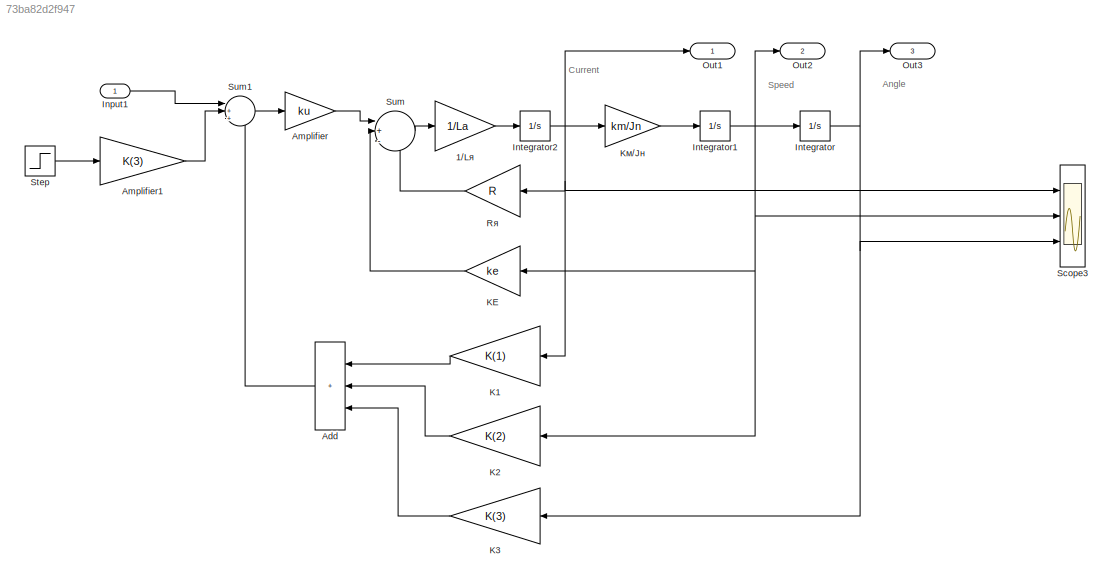
MODEL slx_73ba82d2f947
KIND model
CONFIG AbsTol = auto
CONFIG EnableMultiTasking = on
CONFIG FixedStep = auto
CONFIG MaxStep = auto
CONFIG MinStep = auto
CONFIG RelTol = 1e-3
CONFIG SampleTimeConstraint = Unconstrained
CONFIG SolverName = VariableStepAuto
CONFIG StartTime = 0.0
CONFIG StopTime = 0.1
BLOCK [Gain] 1//Lя
  Gain = 1/La
BLOCK [Sum] Add
  IconShape = rectangular
  Inputs = +++
  Ports = [3, 1]
BLOCK [Gain] Amplifier
  Gain = ku
BLOCK [Gain] Amplifier1
  Gain = K(3)
BLOCK [Inport] Input1
BLOCK [Integrator] Integrator
  Ports = [1, 1]
BLOCK [Integrator] Integrator1
  Ports = [1, 1]
BLOCK [Integrator] Integrator2
  Ports = [1, 1]
BLOCK [Gain] K1
  Gain = K(1)
BLOCK [Gain] K2
  Gain = K(2)
BLOCK [Gain] K3
  Gain = K(3)
BLOCK [Gain] KE
  Gain = ke
BLOCK [Gain] Kм//Jн
  Gain = km/Jn
BLOCK [Outport] Out1
  BusOutputAsStruct = on
BLOCK [Outport] Out2
  BusOutputAsStruct = on
  Port = 2
BLOCK [Outport] Out3
  BusOutputAsStruct = on
  Port = 3
BLOCK [Gain] Rя
  Gain = R
BLOCK [Scope] Scope3
  Floating = off
  NumInputPorts = 3
  Ports = [3]
  ScopeSpecificationString = Simulink.scopes.TimeScopeBlockCfg('CurrentConfiguration', extmgr.ConfigurationSet(extmgr.Configuration('Core','General UI',true,'FigureColor',[1 1 1]),extmgr.Configuration('Core','Source UI',true),extmgr.Configuration('Sources','WiredSimulink',true,'DataLoggingVariableName','ScopeData1'),extmgr.Configuration('Visuals','Time Domain',true,'SerializedDisplays',{struct('MinYLimReal','-5.28174','MaxYLi...<+3624ch>
BLOCK [Step] Step
  SampleTime = 0
  Time = 0
BLOCK [Sum] Sum
  Inputs = |+--
  Ports = [3, 1]
BLOCK [Sum] Sum1
  Inputs = |++-
  Ports = [3, 1]
ANNOTATION (root): Angle
ANNOTATION (root): Current
ANNOTATION (root): Speed
LINE 1//Lя:1 -> Integrator2:1
LINE Add:1 -> Sum1:3
LINE Amplifier1:1 -> Sum1:2
LINE Amplifier:1 -> Sum:1
LINE Input1:1 -> Sum1:1
NET Integrator1:1 -> Integrator:1, K2:1, KE:1, Out2:1, Scope3:2
NET Integrator2:1 -> K1:1, Kм//Jн:1, Out1:1, Rя:1, Scope3:1
NET Integrator:1 -> K3:1, Out3:1, Scope3:3
LINE K1:1 -> Add:1
LINE K2:1 -> Add:2
LINE K3:1 -> Add:3
LINE KE:1 -> Sum:2
LINE Kм//Jн:1 -> Integrator1:1
LINE Rя:1 -> Sum:3
LINE Step:1 -> Amplifier1:1
LINE Sum1:1 -> Amplifier:1
LINE Sum:1 -> 1//Lя:1
note: NET lines group one-source signal fan-out (src -> all destinations, sorted); 1:1 wires keep LINE
